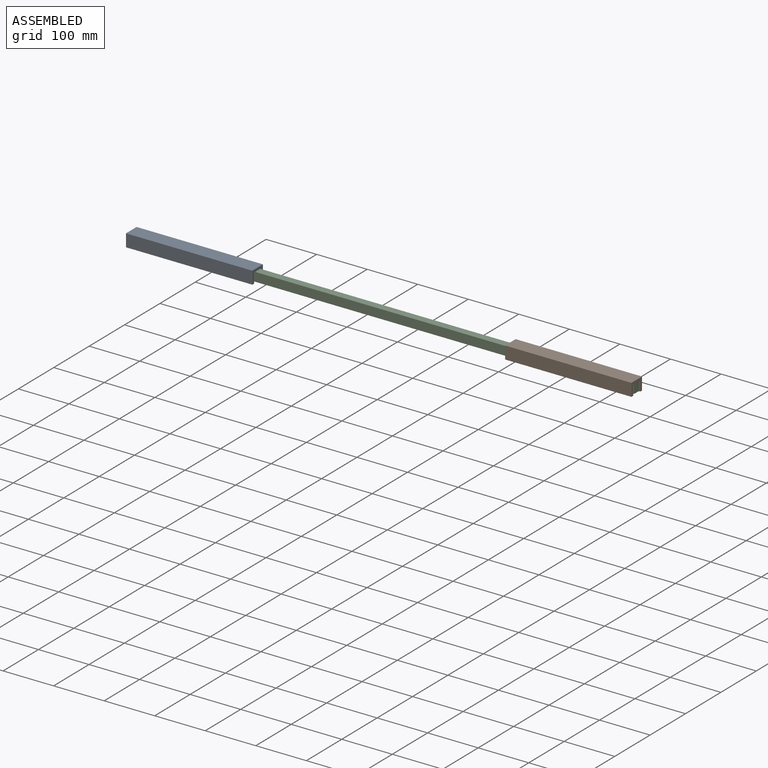
[diagram: assembled view]
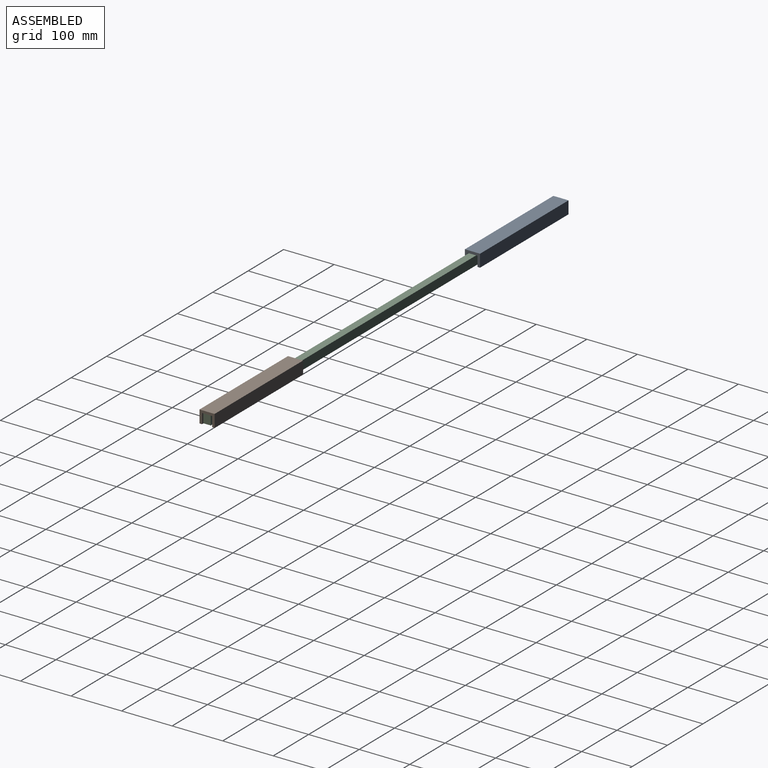
[diagram: assembled view, second angle]
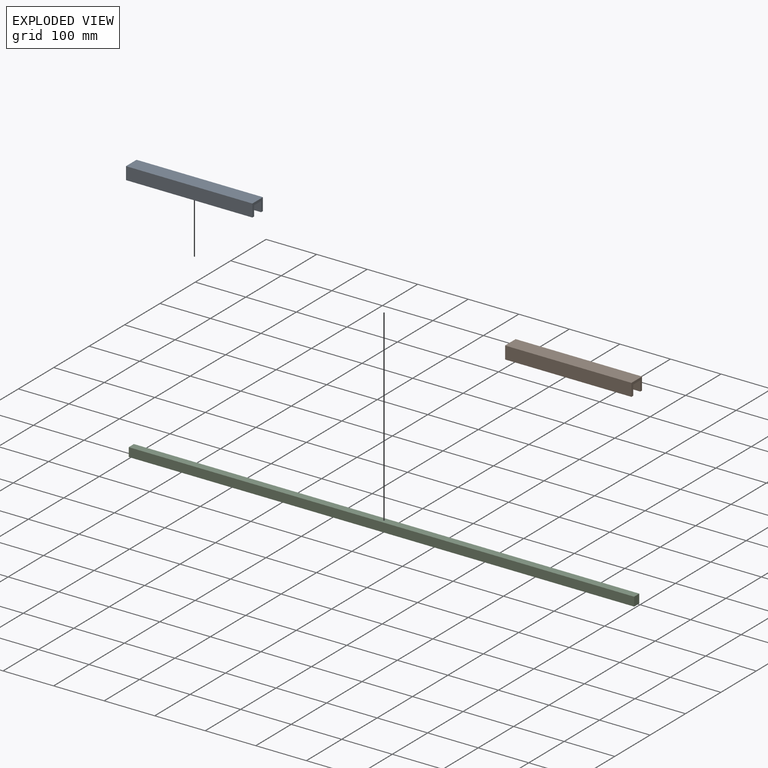
[diagram: exploded view]
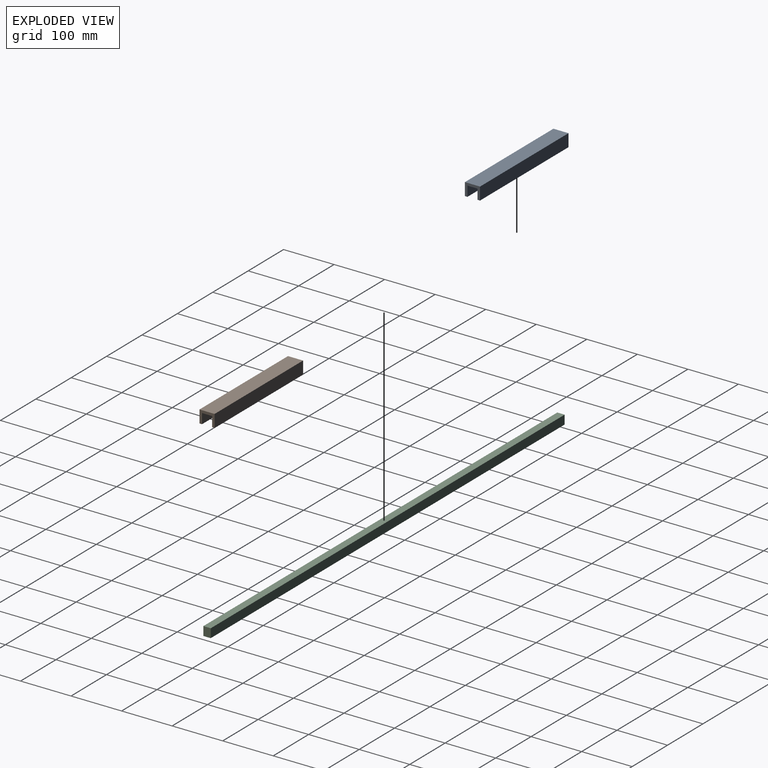
[diagram: exploded view, second angle]
ASSEMBLY  parts=3 mates=2
PART A: 10 faces, bbox 250x29.9x25 mm
  f0: plane 250x25mm, normal (0,-1,0), area 6250mm2, adj f1,f7,f8,f9
  f1: plane 250x5mm, normal (0,0,-1), area 1250mm2, adj f0,f2,f8,f9
  f2: plane 250x20mm, normal (0,1,0), area 5000mm2, adj f1,f3,f8,f9
  f3: plane 250x19.89mm, normal (0,0,-1), area 4971.6mm2, adj f2,f4,f8,f9
  f4: plane 250x20mm, normal (0,-1,0), area 5000mm2, adj f3,f5,f8,f9
  f5: plane 250x5mm, normal (0,0,-1), area 1250mm2, adj f4,f6,f8,f9
  f6: plane 250x25mm, normal (0,1,0), area 6250mm2, adj f5,f7,f8,f9
  f7: plane 250x29.89mm, normal (0,0,1), area 7471.6mm2, adj f0,f6,f8,f9
  f8: plane 29.89x25mm, normal (1,0,0), area 349.4mm2, adj f0,f1,f2,f3,f4,f5,f6,f7
  f9: plane 29.89x25mm, normal (-1,0,0), area 349.4mm2, adj f0,f1,f2,f3,f4,f5,f6,f7
PART B: same geometry as A
PART C: 6 faces, bbox 1000x14.6x17.7 mm
  f0: plane 1000x14.56mm, normal (0,0,1), area 14563.4mm2, adj f1,f3,f4,f5
  f1: plane 1000x17.67mm, normal (0,-1,0), area 17664.8mm2, adj f0,f2,f4,f5
  f2: plane 1000x14.56mm, normal (0,0,-1), area 14563.4mm2, adj f1,f3,f4,f5
  f3: plane 1000x17.67mm, normal (0,1,0), area 17664.8mm2, adj f0,f2,f4,f5
  f4: plane 17.67x14.56mm, normal (1,0,0), area 257.3mm2, adj f0,f1,f2,f3
  f5: plane 17.67x14.56mm, normal (-1,0,0), area 257.3mm2, adj f0,f1,f2,f3
PLACE A t=(-85.11,59.52,-96.6)mm
PLACE B t=(664.89,59.52,-96.6)mm
PLACE C t=(-85.11,59.62,-94.26)mm
MATE parallel A.f3 <-> C.f0  axis (0,0,-1) through (-85.11,69.46,-76.6)mm
MATE parallel B.f3 <-> C.f0  axis (0,0,-1) through (914.89,69.46,-76.6)mm
